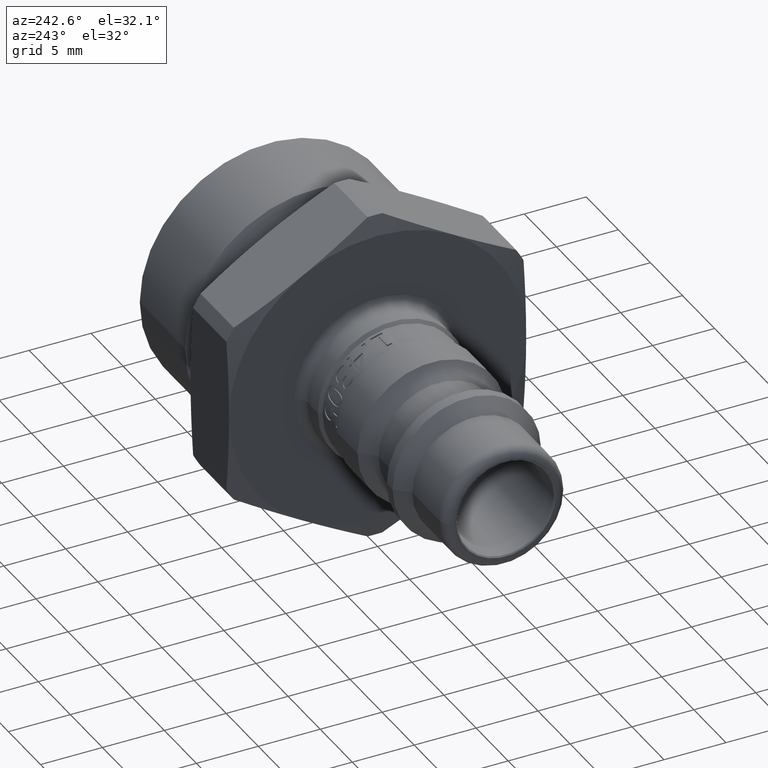
[diagram: clean part render]
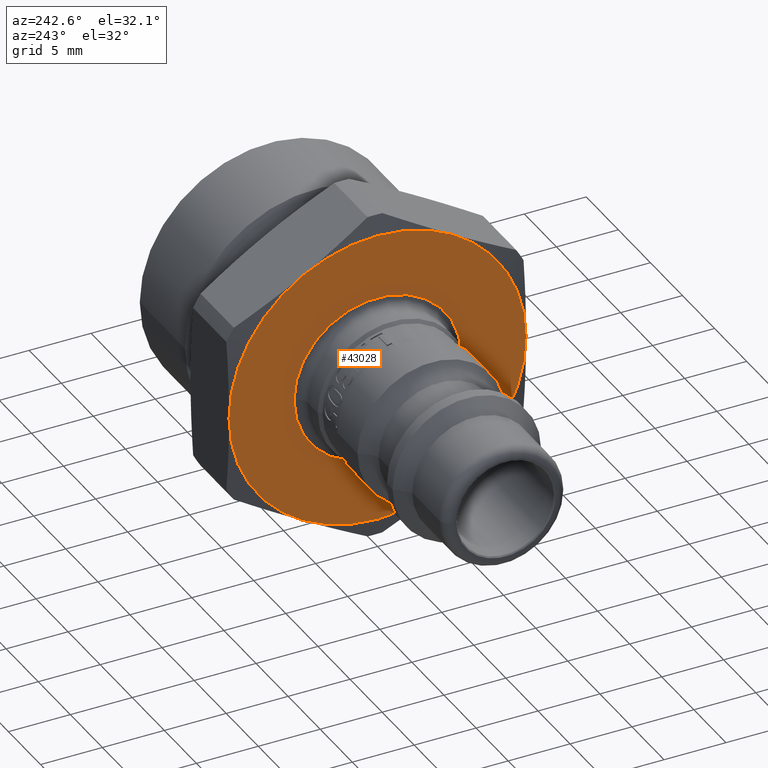
[diagram: same view with one face highlighted and labeled with its STEP entity id]
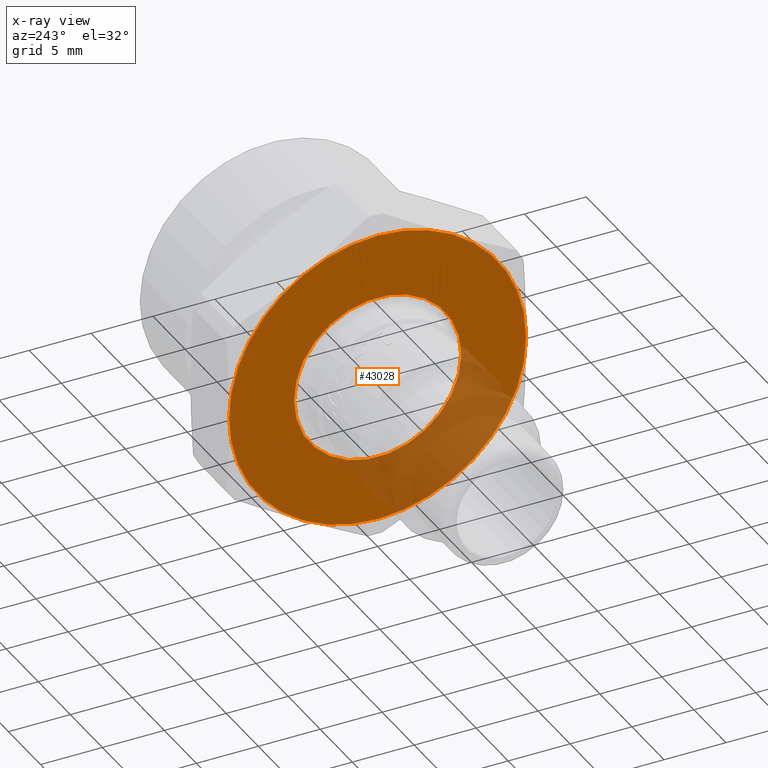
[diagram: x-ray of the same camera — body ghosted, the highlighted face saturated]
A machine part, auxiliary view. The second image highlights one B-rep face of the part: STEP entity #43028.
The next image is the same camera in x-ray: the body ghosted, the highlighted face saturated — about 22% of this face is hidden behind the body in this view.
In plain terms, the highlighted planar face has unit normal (-1, 0, 0).
Its self-contained STEP definition (entity closure, byte-faithful):
#42069=CARTESIAN_POINT('',(20.0,5.999999999999993,-10.392304845413275));
#42070=VERTEX_POINT('',#42069);
#42153=CARTESIAN_POINT('',(20.0,-6.000000000000006,-10.392304845413262));
#42154=VERTEX_POINT('',#42153);
#42237=CARTESIAN_POINT('',(20.0,-12.000000000000002,1.998401E-015));
#42238=VERTEX_POINT('',#42237);
#42321=CARTESIAN_POINT('',(20.0,-5.999999999999998,10.392304845413268));
#42322=VERTEX_POINT('',#42321);
#42405=CARTESIAN_POINT('',(20.0,6.000000000000002,10.392304845413264));
#42406=VERTEX_POINT('',#42405);
#42766=CARTESIAN_POINT('',(20.0,12.000000000000002,0.0));
#42767=VERTEX_POINT('',#42766);
#42768=CARTESIAN_POINT('',(20.0,0.0,0.0));
#42769=DIRECTION('',(1.0,0.0,0.0));
#42770=DIRECTION('',(0.0,1.0,0.0));
#42771=AXIS2_PLACEMENT_3D('',#42768,#42769,#42770);
#42772=CIRCLE('',#42771,12.000000000000002);
#42773=EDGE_CURVE('',#42070,#42767,#42772,.T.);
#42812=CARTESIAN_POINT('',(20.0,0.0,0.0));
#42813=DIRECTION('',(1.0,0.0,0.0));
#42814=DIRECTION('',(0.0,1.0,0.0));
#42815=AXIS2_PLACEMENT_3D('',#42812,#42813,#42814);
#42816=CIRCLE('',#42815,12.000000000000002);
#42817=EDGE_CURVE('',#42767,#42406,#42816,.T.);
#42830=CARTESIAN_POINT('',(20.0,0.0,0.0));
#42831=DIRECTION('',(1.0,0.0,0.0));
#42832=DIRECTION('',(0.0,1.0,0.0));
#42833=AXIS2_PLACEMENT_3D('',#42830,#42831,#42832);
#42834=CIRCLE('',#42833,12.000000000000002);
#42835=EDGE_CURVE('',#42406,#42322,#42834,.T.);
#42848=CARTESIAN_POINT('',(20.0,0.0,0.0));
#42849=DIRECTION('',(1.0,0.0,0.0));
#42850=DIRECTION('',(0.0,1.0,0.0));
#42851=AXIS2_PLACEMENT_3D('',#42848,#42849,#42850);
#42852=CIRCLE('',#42851,12.000000000000002);
#42853=EDGE_CURVE('',#42322,#42238,#42852,.T.);
#42866=CARTESIAN_POINT('',(20.0,0.0,0.0));
#42867=DIRECTION('',(1.0,0.0,0.0));
#42868=DIRECTION('',(0.0,1.0,0.0));
#42869=AXIS2_PLACEMENT_3D('',#42866,#42867,#42868);
#42870=CIRCLE('',#42869,12.000000000000002);
#42871=EDGE_CURVE('',#42238,#42154,#42870,.T.);
#42974=CARTESIAN_POINT('',(20.0,6.75,-1.653273E-015));
#42975=VERTEX_POINT('',#42974);
#42976=CARTESIAN_POINT('',(20.0,0.0,0.0));
#42977=DIRECTION('',(-1.0,0.0,0.0));
#42978=DIRECTION('',(0.0,-1.0,0.0));
#42979=AXIS2_PLACEMENT_3D('',#42976,#42977,#42978);
#42980=CIRCLE('',#42979,6.75);
#42981=EDGE_CURVE('',#42975,#42975,#42980,.T.);
#43006=CARTESIAN_POINT('',(20.0,9.000000000000002,0.0));
#43007=DIRECTION('',(-1.0,0.0,0.0));
#43008=DIRECTION('',(0.0,0.0,1.0));
#43009=AXIS2_PLACEMENT_3D('',#43006,#43007,#43008);
#43010=PLANE('',#43009);
#43011=ORIENTED_EDGE('',*,*,#42817,.F.);
#43012=ORIENTED_EDGE('',*,*,#42773,.F.);
#43013=CARTESIAN_POINT('',(20.0,0.0,0.0));
#43014=DIRECTION('',(1.0,0.0,0.0));
#43015=DIRECTION('',(0.0,1.0,0.0));
#43016=AXIS2_PLACEMENT_3D('',#43013,#43014,#43015);
#43017=CIRCLE('',#43016,12.000000000000002);
#43018=EDGE_CURVE('',#42154,#42070,#43017,.T.);
#43019=ORIENTED_EDGE('',*,*,#43018,.F.);
#43020=ORIENTED_EDGE('',*,*,#42871,.F.);
#43021=ORIENTED_EDGE('',*,*,#42853,.F.);
#43022=ORIENTED_EDGE('',*,*,#42835,.F.);
#43023=EDGE_LOOP('',(#43011,#43012,#43019,#43020,#43021,#43022));
#43024=FACE_OUTER_BOUND('',#43023,.T.);
#43025=ORIENTED_EDGE('',*,*,#42981,.F.);
#43026=EDGE_LOOP('',(#43025));
#43027=FACE_BOUND('',#43026,.T.);
#43028=ADVANCED_FACE('',(#43024,#43027),#43010,.T.);